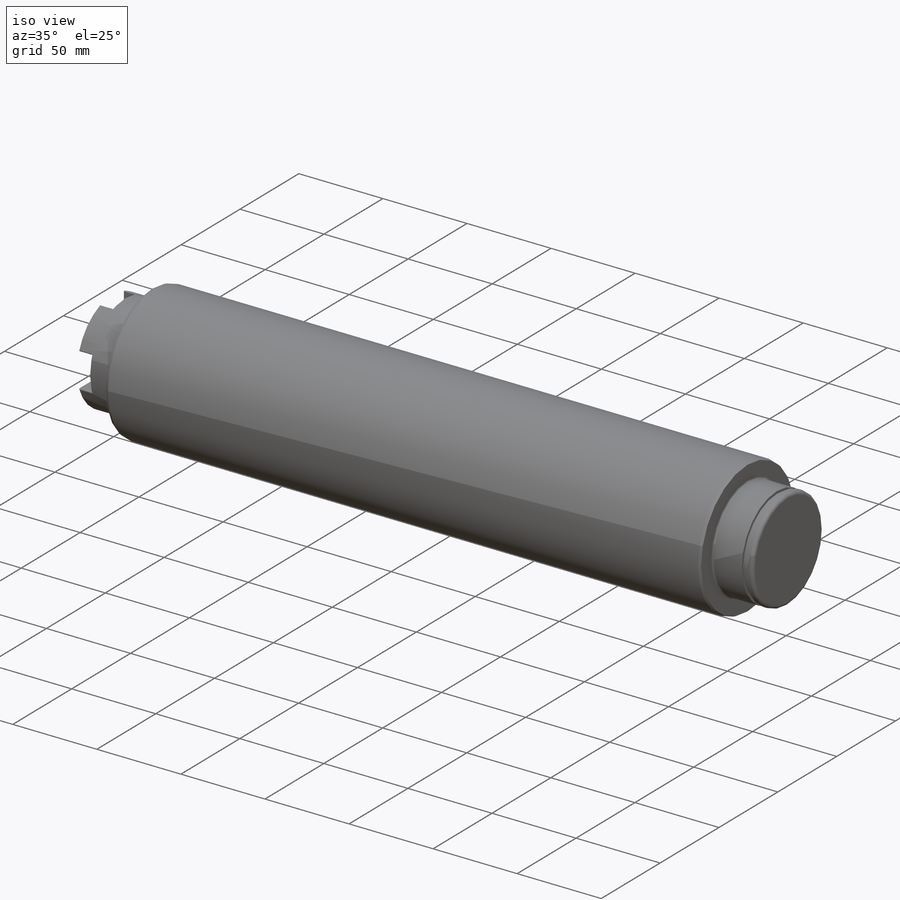
[diagram: iso view]
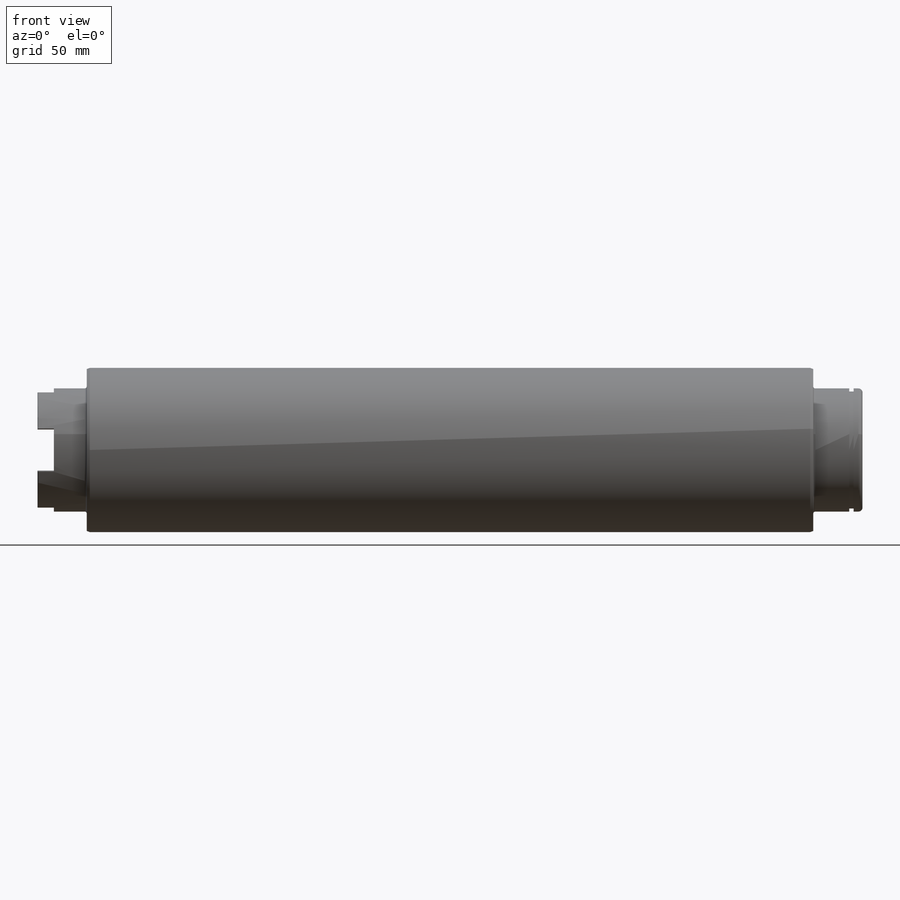
[diagram: front view]
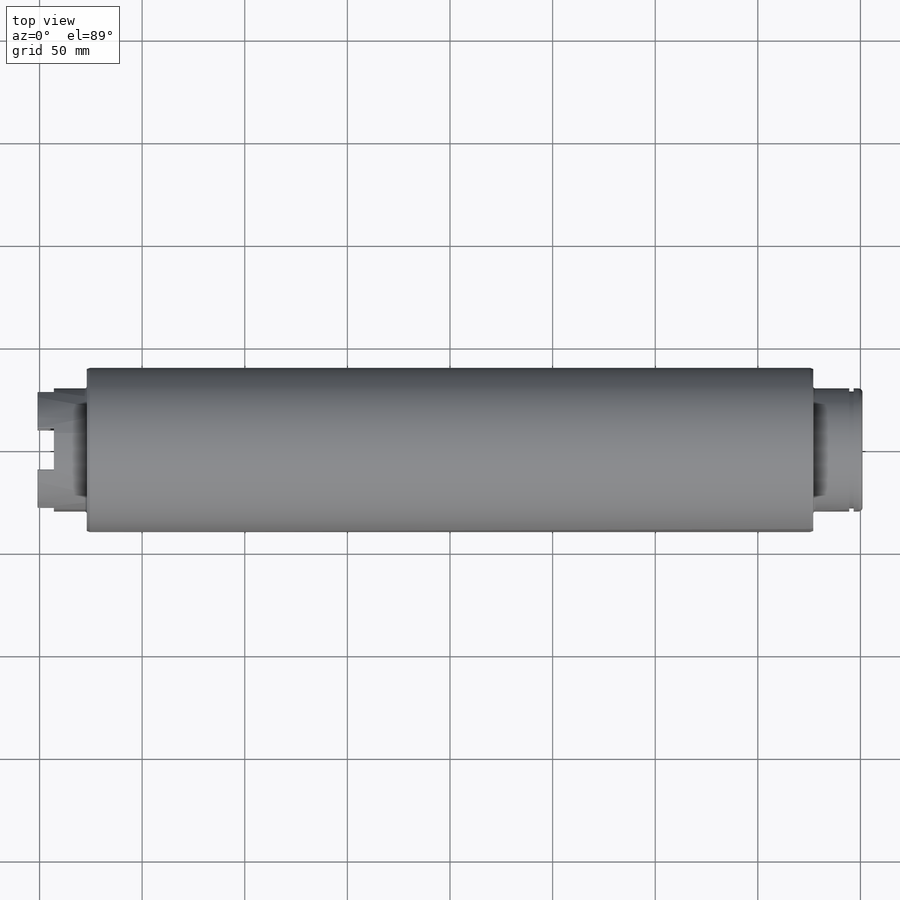
[diagram: top view]
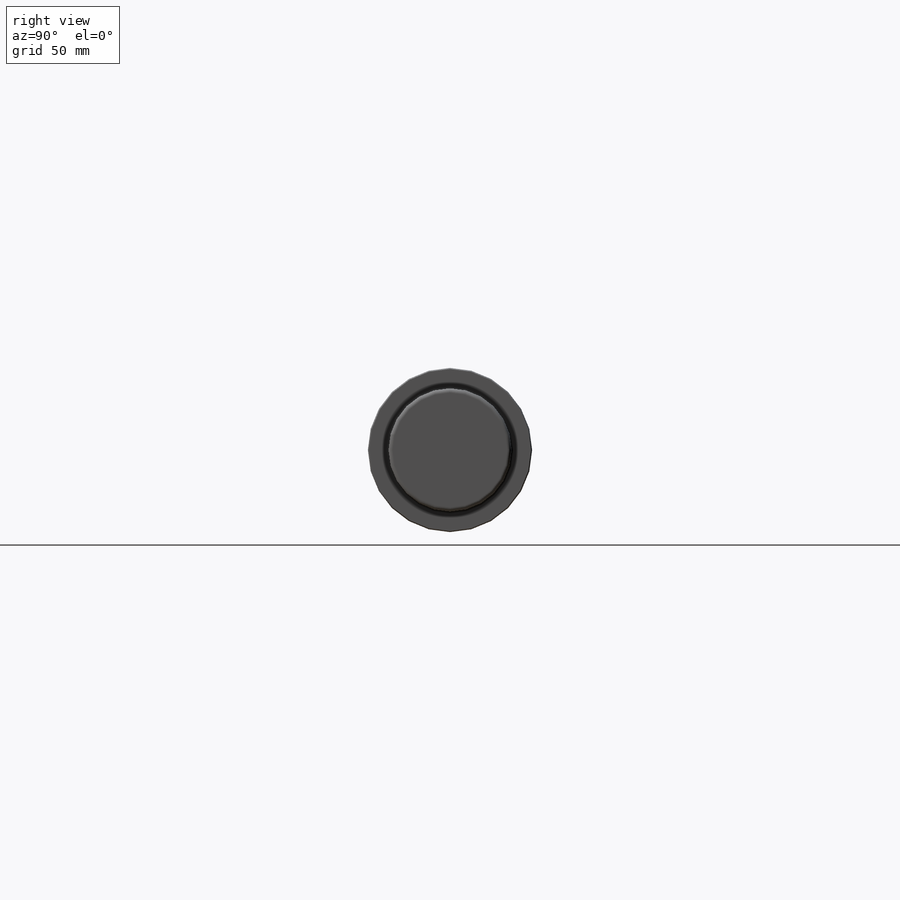
[diagram: right view]
SOLIDWORKS PART (.sldprt)
format: sldprt  version: not decoded by parser v0  size: 324,608 bytes
history: native  units: mm
features: sketch x2, cut_extrude x2, material x1, revolve x1, thread x1, fillet x1 (+14 scaffold rows collapsed)
feature tree (22):
  scaffold x14  (default folders/planes/origin — collapsed)
  material  "Material <not specified>"
  sketch  "Sketch1"  dims[c1.D18=2.0mm c1.D1=232.0mm c1.D2=10.0mm c1.D3=90.0deg c1.D4=80.0mm c1.D5=60.0mm c1.D6=45.0mm c1.D7=60.0mm c1.D8=20.0deg c1.D9=1.5mm c2.D1=402.0mm c2.D6=80.0mm c2.D10=504.0mm c2.D7=21.0mm c3.D10=504.0mm c3.D2=24.0mm c3.D3=8.0mm c3.D4=40.0mm c3.D7=17.0mm c4.D10=14.0mm c4.D11=~294.259685mm c5.D11=59.0deg c5.D12=~4.358813mm c6.D12=59.0deg c6.D13=10.0mm c6.D14=42.0mm c6.D15=6.5mm c6.D16=2.15mm c6.D17=57.0mm c6.D19=354.0mm c6.D20=17.5mm c6.D21=201.0mm]
  revolve  "Base-Revolve"  [1 undecoded]
  thread  "Cosmetic Thread2"  Diameter=24.1mm  [1 undecoded]
  fillet  "R1 runding"  Radius=1mm
  sketch  "Sketch3"  dims[D1=20.0mm D2=20.0mm]
  cut_extrude  "Affræsning"  Depth=8mm
  cut_extrude  "R0.5 rundinger"  Depth=0.5mm ID=-1
decode coverage: 6 of 7 modeling features carry decoded parameters
note: ~ marks probable driven/reference dimensions
note: 2 parameter values undecoded
note: suppression state not decoded; provenance and decode notes live in map.json
